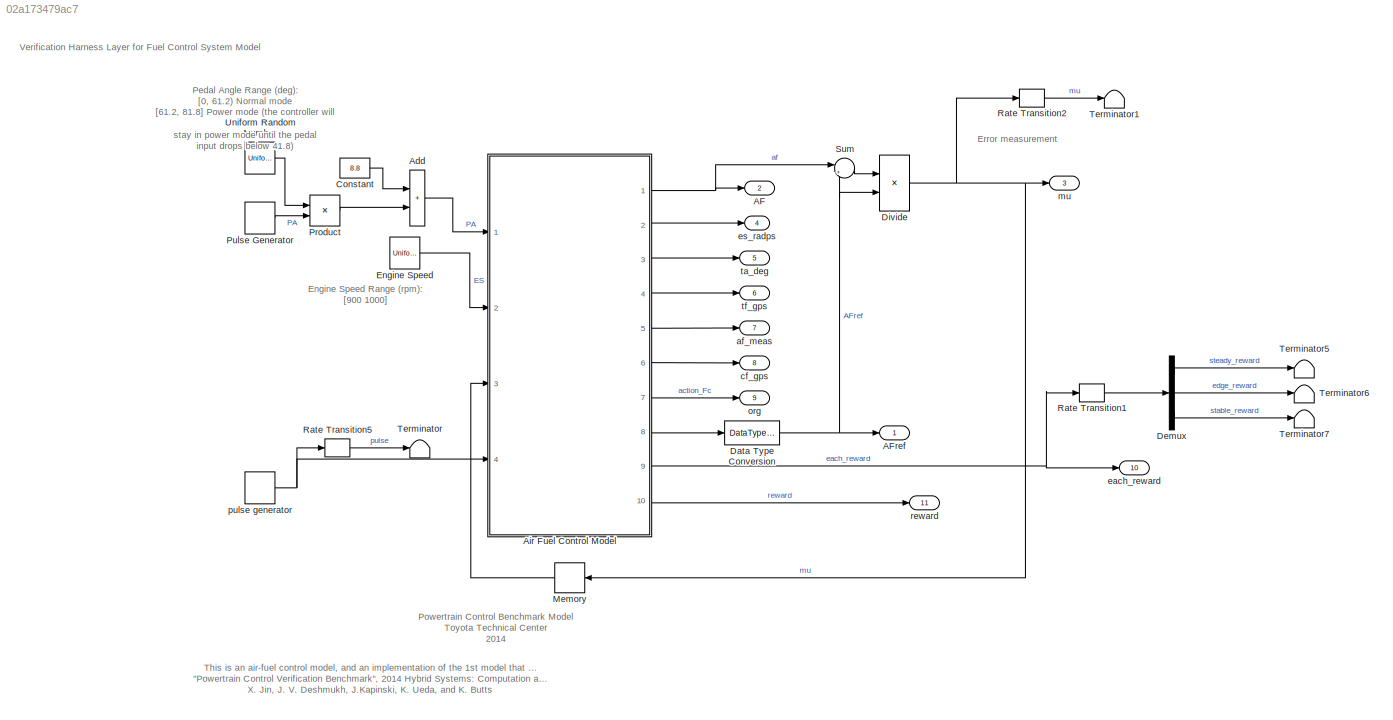
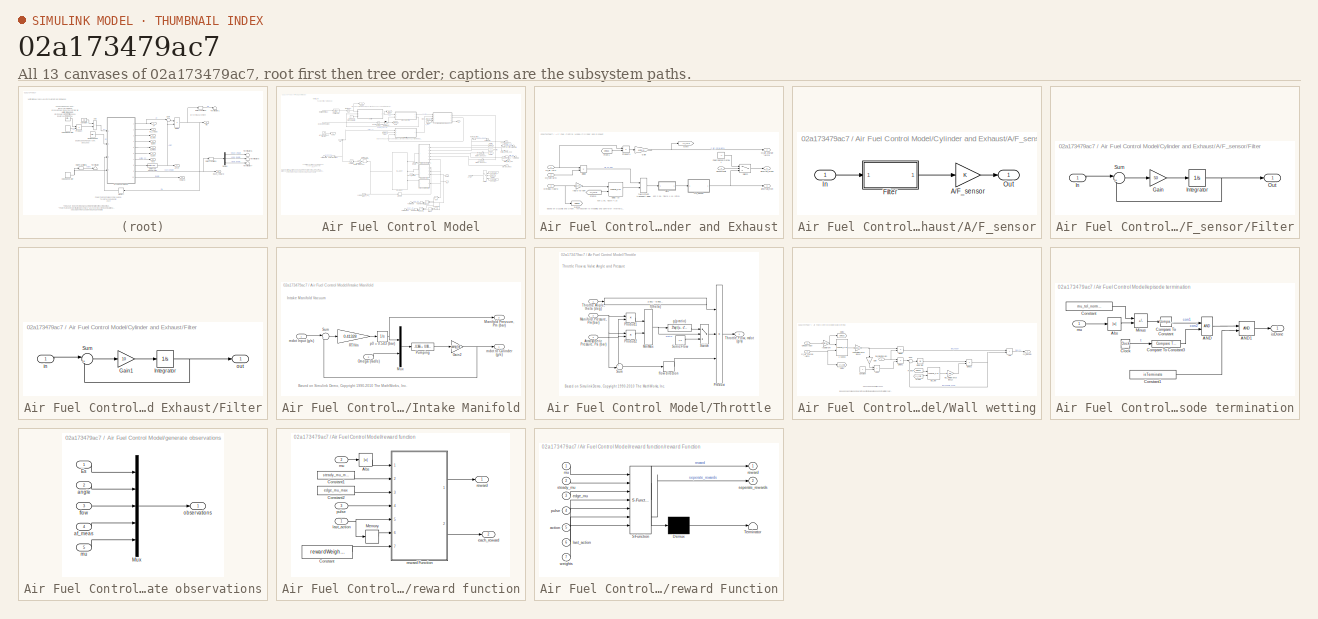
[diagram: thumbnail index - all 13 canvases of the model, root first then tree order]
MODEL slx_02a173479ac7
KIND model
CONFIG AbsTol = auto
CONFIG EnableMultiTasking = off
CONFIG FixedStep = auto
CONFIG MaxStep = .01
CONFIG MinStep = auto
CONFIG RelTol = 1e-3
CONFIG SampleTimeConstraint = Unconstrained
CONFIG SolverName = ode15s
CONFIG StartFcn = if isEval\n  seed_PA = simCount;\n  seed_ES = simCount;\n  simCount = simCount + 1;\nelse\n  seed_PA = randi(20000);\n  seed_ES = randi(20000);\nend
CONFIG StartTime = 0.0
CONFIG StopTime = T
BLOCK [Outport] AF
  Port = 2
  VectorParamsAs1DForOutWhenUnconnected = off
BLOCK [Outport] AFref
  VectorParamsAs1DForOutWhenUnconnected = off
BLOCK [Sum] Add
  IconShape = rectangular
  Ports = [2, 1]
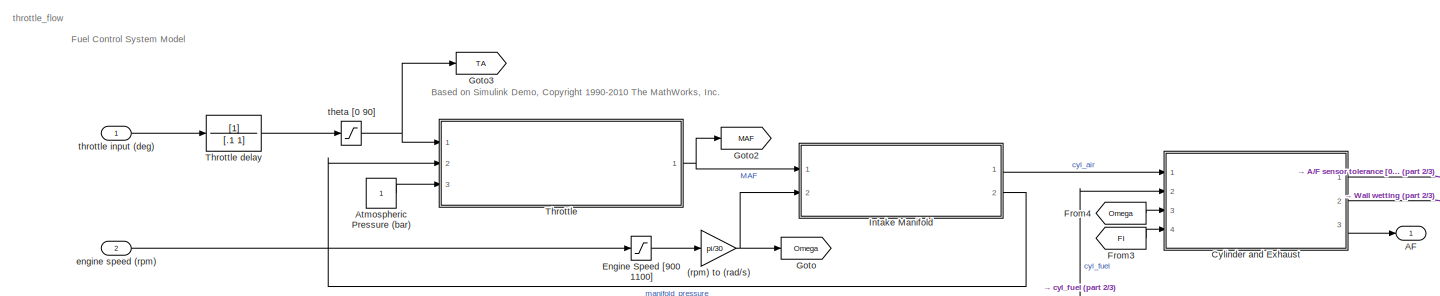
[diagram: Air Fuel Control Model - part 1/3, top center region]
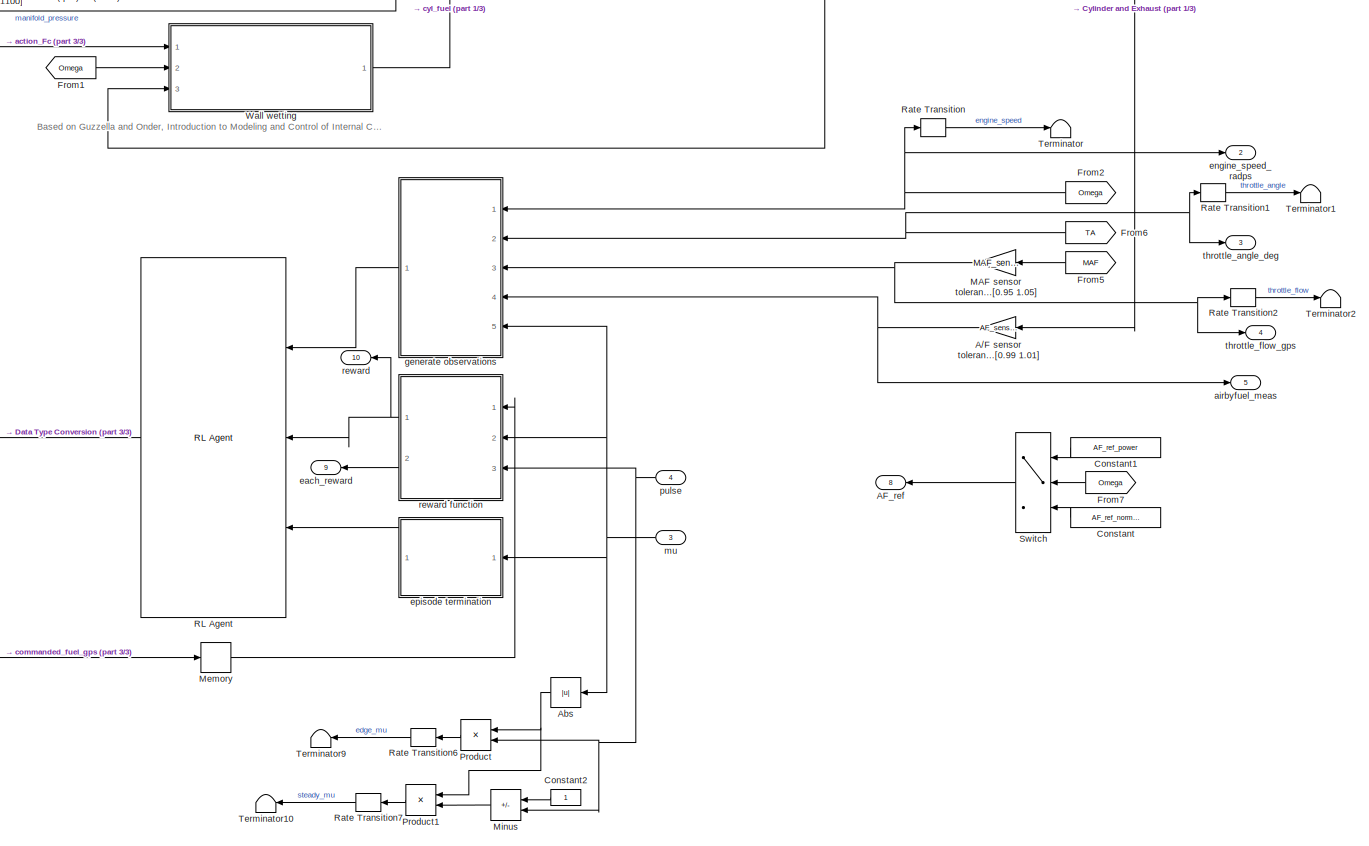
[diagram: Air Fuel Control Model - part 2/3, right side, full height]
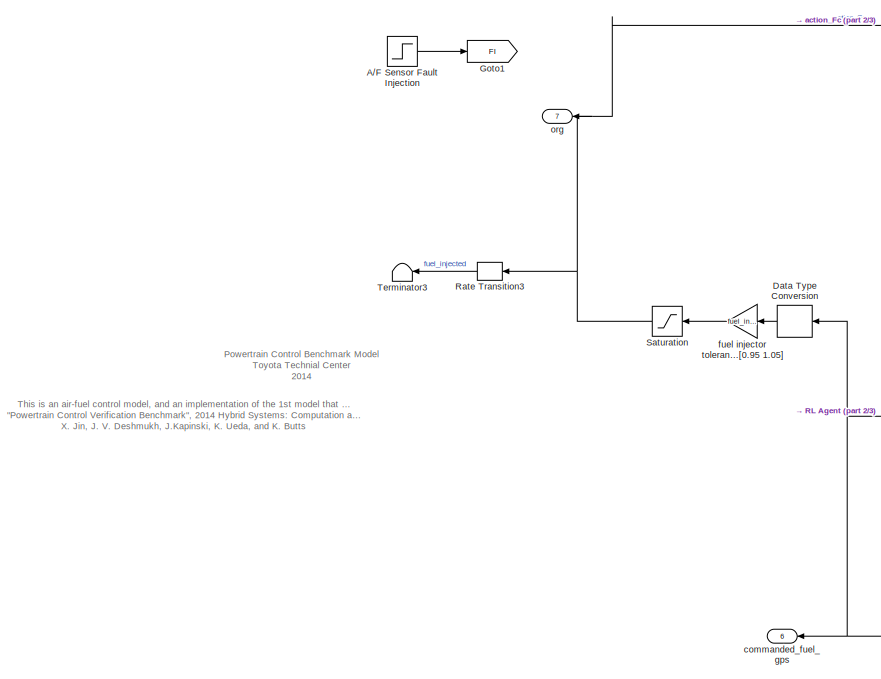
[diagram: Air Fuel Control Model - part 3/3, middle left region]
BLOCK [SubSystem] Air Fuel Control Model
  Ports = [4, 10]
  Priority = 1
  RequestExecContextInheritance = off
  TreatAsAtomicUnit = on
BLOCK [Gain] Air Fuel Control Model/(rpm) to (rad//s)
  Gain = pi/30
BLOCK [Step] Air Fuel Control Model/A//F Sensor Fault Injection
  AttributesFormatString = 1: Failure\n0: Normal
  SampleTime = 0
  Time = fault_time
BLOCK [Gain] Air Fuel Control Model/A//F sensor tolerance [0.99 1.01]
  Gain = AF_sensor_tol
BLOCK [Outport] Air Fuel Control Model/AF
  VectorParamsAs1DForOutWhenUnconnected = off
BLOCK [Outport] Air Fuel Control Model/AF_ref
  Port = 8
BLOCK [Abs] Air Fuel Control Model/Abs
  SaturateOnIntegerOverflow = off
BLOCK [Constant] Air Fuel Control Model/Atmospheric Pressure (bar)
BLOCK [Constant] Air Fuel Control Model/Constant
  Value = AF_ref_normal
BLOCK [Constant] Air Fuel Control Model/Constant1
  Value = AF_ref_power
BLOCK [Constant] Air Fuel Control Model/Constant2
BLOCK [SubSystem] Air Fuel Control Model/Cylinder and Exhaust
  Ports = [4, 3]
  RequestExecContextInheritance = off
BLOCK [SubSystem] Air Fuel Control Model/Cylinder and Exhaust/A//F_sensor
  Ports = [1, 1]
  RequestExecContextInheritance = off
BLOCK [Gain] Air Fuel Control Model/Cylinder and Exhaust/A//F_sensor/A//F_sensor
  OutDataTypeStr = double
BLOCK [SubSystem] Air Fuel Control Model/Cylinder and Exhaust/A//F_sensor/Filter
  Ports = [1, 1]
  RequestExecContextInheritance = off
BLOCK [Gain] Air Fuel Control Model/Cylinder and Exhaust/A//F_sensor/Filter/Gain
  Gain = 50
BLOCK [Inport] Air Fuel Control Model/Cylinder and Exhaust/A//F_sensor/Filter/In
BLOCK [Integrator] Air Fuel Control Model/Cylinder and Exhaust/A//F_sensor/Filter/Integrator
  InitialCondition = 14.7
  Ports = [1, 1]
BLOCK [Outport] Air Fuel Control Model/Cylinder and Exhaust/A//F_sensor/Filter/Out
  VectorParamsAs1DForOutWhenUnconnected = off
BLOCK [Sum] Air Fuel Control Model/Cylinder and Exhaust/A//F_sensor/Filter/Sum
  Inputs = |+-
  Ports = [2, 1]
BLOCK [Inport] Air Fuel Control Model/Cylinder and Exhaust/A//F_sensor/In
BLOCK [Outport] Air Fuel Control Model/Cylinder and Exhaust/A//F_sensor/Out
  VectorParamsAs1DForOutWhenUnconnected = off
BLOCK [Product] Air Fuel Control Model/Cylinder and Exhaust/Divide
  Inputs = */
  Ports = [2, 1]
BLOCK [Constant] Air Fuel Control Model/Cylinder and Exhaust/FaultySensorOutput
  Value = -1
BLOCK [SubSystem] Air Fuel Control Model/Cylinder and Exhaust/Filter
  Ports = [1, 1]
  RequestExecContextInheritance = off
BLOCK [Gain] Air Fuel Control Model/Cylinder and Exhaust/Filter/Gain1
  Gain = 10
BLOCK [Integrator] Air Fuel Control Model/Cylinder and Exhaust/Filter/Integrator
  InitialCondition = 14.7
  Ports = [1, 1]
BLOCK [Sum] Air Fuel Control Model/Cylinder and Exhaust/Filter/Sum
  Inputs = |+-
  Ports = [2, 1]
BLOCK [Inport] Air Fuel Control Model/Cylinder and Exhaust/Filter/in
BLOCK [Outport] Air Fuel Control Model/Cylinder and Exhaust/Filter/out
  VectorParamsAs1DForOutWhenUnconnected = off
BLOCK [From] Air Fuel Control Model/Cylinder and Exhaust/From1
  GotoTag = Omega
BLOCK [From] Air Fuel Control Model/Cylinder and Exhaust/From3
  GotoTag = cyl_chrg
BLOCK [Gain] Air Fuel Control Model/Cylinder and Exhaust/Gain
  Gain = 4*pi/4
BLOCK [Goto] Air Fuel Control Model/Cylinder and Exhaust/Goto
  GotoTag = cyl_chrg
BLOCK [Goto] Air Fuel Control Model/Cylinder and Exhaust/Goto1
  GotoTag = Omega
BLOCK [Inport] Air Fuel Control Model/Cylinder and Exhaust/Omega (rad//s)
  Port = 3
BLOCK [Product] Air Fuel Control Model/Cylinder and Exhaust/Product1
  Inputs = */
  Ports = [2, 1]
  RndMeth = Zero
BLOCK [Inport] Air Fuel Control Model/Cylinder and Exhaust/SensorFault
  Port = 4
BLOCK [Switch] Air Fuel Control Model/Cylinder and Exhaust/Switch
  InputSameDT = off
  SaturateOnIntegerOverflow = off
  Threshold = 0.5
BLOCK [Outport] Air Fuel Control Model/Cylinder and Exhaust/airbyfue_meas
  VectorParamsAs1DForOutWhenUnconnected = off
BLOCK [Outport] Air Fuel Control Model/Cylinder and Exhaust/airbyfuel_mon 
  Port = 3
  VectorParamsAs1DForOutWhenUnconnected = off
BLOCK [Inport] Air Fuel Control Model/Cylinder and Exhaust/cyl_air (g//s)
BLOCK [Outport] Air Fuel Control Model/Cylinder and Exhaust/cyl_air_charge (g//cyl)
  Port = 2
  VectorParamsAs1DForOutWhenUnconnected = off
BLOCK [Inport] Air Fuel Control Model/Cylinder and Exhaust/cyl_fuel (g//s)
  Port = 2
BLOCK [Lookup_n-D] Air Fuel Control Model/Cylinder and Exhaust/delay (s)
  BreakpointsForDimension1 = [800,1000,1500,2000,3000]
  BreakpointsForDimension2 = [0.05,0.15,0.2,0.25]
  InputPortMap = u0,u1
  Ports = [2, 1]
  RndMeth = Simplest
  Table = reshape([0.8,0.6,0.4,0.3,0.2,0.4,0.3,0.2,0.2,0.2,0.3,0.25,0.2,0.2,0.2,0.25,0.2,0.2,0.2,0.2],5,4)
  UseLastTableValue = on
BLOCK [VariableTransportDelay] Air Fuel Control Model/Cylinder and Exhaust/fuel system transport delay
  InitialOutput = 14.7
  MaximumDelay = 10
  MaximumPoints = 20480
  Ports = [2, 1]
  VariableDelayType = Variable transport delay
BLOCK [Gain] Air Fuel Control Model/Cylinder and Exhaust/rad//s to rpm
  Gain = 60/(2*pi)
BLOCK [DataTypeConversion] Air Fuel Control Model/Data Type Conversion
  OutDataTypeStr = double
  RndMeth = Floor
  SaturateOnIntegerOverflow = off
BLOCK [Saturate] Air Fuel Control Model/Engine Speed [900 1100]
  LowerLimit = 900
  NameLocation = top
  UpperLimit = 1100
BLOCK [From] Air Fuel Control Model/From1
  GotoTag = Omega
BLOCK [From] Air Fuel Control Model/From2
  GotoTag = Omega
  NameLocation = top
BLOCK [From] Air Fuel Control Model/From3
  GotoTag = FI
BLOCK [From] Air Fuel Control Model/From4
  GotoTag = Omega
BLOCK [From] Air Fuel Control Model/From5
  GotoTag = MAF
  NameLocation = top
BLOCK [From] Air Fuel Control Model/From6
  GotoTag = TA
  NameLocation = top
BLOCK [From] Air Fuel Control Model/From7
  GotoTag = Omega
  NameLocation = top
BLOCK [Goto] Air Fuel Control Model/Goto
  GotoTag = Omega
BLOCK [Goto] Air Fuel Control Model/Goto1
  GotoTag = FI
BLOCK [Goto] Air Fuel Control Model/Goto2
  GotoTag = MAF
BLOCK [Goto] Air Fuel Control Model/Goto3
  GotoTag = TA
BLOCK [SubSystem] Air Fuel Control Model/Intake Manifold
  Ports = [2, 2]
  RequestExecContextInheritance = off
BLOCK [Gain] Air Fuel Control Model/Intake Manifold/Gain2
  AttributesFormatString = pumping tolerance [0.9 1.1]
  Gain = pump_tol
  OutDataTypeStr = Inherit: Inherit via back propagation
  ParamDataTypeStr = single
  RndMeth = Simplest
  SaturateOnIntegerOverflow = on
  UserDataPersistent = on
BLOCK [Outport] Air Fuel Control Model/Intake Manifold/Manifold Pressure, Pm (bar)
  InitialOutput = 0
  Port = 2
  VectorParamsAs1DForOutWhenUnconnected = off
BLOCK [Mux] Air Fuel Control Model/Intake Manifold/Mux
  DisplayOption = bar
  Inputs = 2
  Ports = [2, 1]
BLOCK [Inport] Air Fuel Control Model/Intake Manifold/Omega (rad//s)
  Port = 2
BLOCK [Fcn] Air Fuel Control Model/Intake Manifold/Pumping
  Expr = -0.366 + 0.08979*u[1]*u[2] - 0.0337*u[2]*u[1]*u[1] + 0.0001*u[1]*u[2]*u[2]
BLOCK [Gain] Air Fuel Control Model/Intake Manifold/RT//Vm
  Gain = 0.41328
  OutDataTypeStr = Inherit: Same as input
  ParamDataTypeStr = Inherit: Same as input
  SaturateOnIntegerOverflow = on
BLOCK [Sum] Air Fuel Control Model/Intake Manifold/Sum
  InputSameDT = on
  Inputs = |+-
  OutDataTypeStr = Inherit: Same as first input
  Ports = [2, 1]
  SaturateOnIntegerOverflow = on
BLOCK [Inport] Air Fuel Control Model/Intake Manifold/mdot Input (g//s)
BLOCK [Outport] Air Fuel Control Model/Intake Manifold/mdot to Cylinder (g//s)
  InitialOutput = 0
  VectorParamsAs1DForOutWhenUnconnected = off
BLOCK [Integrator] Air Fuel Control Model/Intake Manifold/p0 = 0.543 (bar)
  InitialCondition = 0.982
  Ports = [1, 1]
BLOCK [Gain] Air Fuel Control Model/MAF sensor tolerance [0.95 1.05]
  Gain = MAF_sensor_tol
BLOCK [Memory] Air Fuel Control Model/Memory
  InheritSampleTime = on
BLOCK [Sum] Air Fuel Control Model/Minus
  IconShape = rectangular
  Inputs = +-
  Ports = [2, 1]
BLOCK [Product] Air Fuel Control Model/Product
  Ports = [2, 1]
BLOCK [Product] Air Fuel Control Model/Product1
  Ports = [2, 1]
BLOCK [Reference] Air Fuel Control Model/RL Agent  REF=rllib/RL Agent
  Ports = [3, 1]
  SourceBlock = rllib/RL Agent
  SourceProductBaseCode = RL
  SourceType = RL Agent
BLOCK [RateTransition] Air Fuel Control Model/Rate Transition
  OutPortSampleTime = Ts_sample
BLOCK [RateTransition] Air Fuel Control Model/Rate Transition1
  OutPortSampleTime = Ts_sample
BLOCK [RateTransition] Air Fuel Control Model/Rate Transition2
  OutPortSampleTime = Ts_sample
BLOCK [RateTransition] Air Fuel Control Model/Rate Transition3
  OutPortSampleTime = Ts_sample
BLOCK [RateTransition] Air Fuel Control Model/Rate Transition6
  OutPortSampleTime = Ts_sample
BLOCK [RateTransition] Air Fuel Control Model/Rate Transition7
  OutPortSampleTime = Ts_sample
BLOCK [Saturate] Air Fuel Control Model/Saturation
  LowerLimit = fuel_inj_min
  UpperLimit = fuel_inj_max
BLOCK [Switch] Air Fuel Control Model/Switch
  InputSameDT = off
  SaturateOnIntegerOverflow = off
  Threshold = power_threshold
BLOCK [Terminator] Air Fuel Control Model/Terminator
BLOCK [Terminator] Air Fuel Control Model/Terminator1
BLOCK [Terminator] Air Fuel Control Model/Terminator10
BLOCK [Terminator] Air Fuel Control Model/Terminator2
BLOCK [Terminator] Air Fuel Control Model/Terminator3
BLOCK [Terminator] Air Fuel Control Model/Terminator9
BLOCK [SubSystem] Air Fuel Control Model/Throttle
  Ports = [3, 1]
  RequestExecContextInheritance = off
BLOCK [TransferFcn] Air Fuel Control Model/Throttle delay
  Denominator = [.1 1]
BLOCK [Inport] Air Fuel Control Model/Throttle/Atmospheric Pressure, Pa (bar) 
  Port = 3
BLOCK [Inport] Air Fuel Control Model/Throttle/Manifold Pressure, Pm (bar)
  Port = 2
BLOCK [MinMax] Air Fuel Control Model/Throttle/MinMax
  InputSameDT = on
  Inputs = 2
  Ports = [2, 1]
  SaturateOnIntegerOverflow = on
BLOCK [Product] Air Fuel Control Model/Throttle/Product
  InputSameDT = on
  Inputs = 3
  OutDataTypeStr = Inherit: Same as first input
  Ports = [3, 1]
  RndMeth = Zero
  SaturateOnIntegerOverflow = on
BLOCK [Product] Air Fuel Control Model/Throttle/Product1
  InputSameDT = on
  Inputs = */
  OutDataTypeStr = Inherit: Same as first input
  Ports = [2, 1]
  RndMeth = Zero
  SaturateOnIntegerOverflow = on
BLOCK [Product] Air Fuel Control Model/Throttle/Product2
  InputSameDT = on
  Inputs = /*
  OutDataTypeStr = Inherit: Same as first input
  Ports = [2, 1]
  RndMeth = Zero
  SaturateOnIntegerOverflow = on
BLOCK [Constant] Air Fuel Control Model/Throttle/Sonic Flow 
  Value = 1.0
BLOCK [Sum] Air Fuel Control Model/Throttle/Sum
  InputSameDT = on
  Inputs = +-|
  OutDataTypeStr = Inherit: Same as first input
  Ports = [2, 1]
  SaturateOnIntegerOverflow = on
BLOCK [Switch] Air Fuel Control Model/Throttle/Switch
  Threshold = 0.5
BLOCK [Inport] Air Fuel Control Model/Throttle/Throttle Angle, theta (deg)
  NameLocation = top
BLOCK [Outport] Air Fuel Control Model/Throttle/Throttle Flow, mdot (g//s)
  InitialOutput = 0
  VectorParamsAs1DForOutWhenUnconnected = off
BLOCK [Fcn] Air Fuel Control Model/Throttle/f(theta)
  Expr = 2.821 - 0.05231*u + 0.10299*u*u - 0.00063*u*u*u
  NameLocation = top
BLOCK [Signum] Air Fuel Control Model/Throttle/flow direction
BLOCK [Fcn] Air Fuel Control Model/Throttle/g(pratio)
  Expr = 2*sqrt(u - u*u)
  NameLocation = top
BLOCK [SubSystem] Air Fuel Control Model/Wall wetting
  Ports = [3, 1]
  RequestExecContextInheritance = off
BLOCK [Lookup_n-D] Air Fuel Control Model/Wall wetting/1-Kappa
  BreakpointsForDimension1 = [1000,1500,2000,2500,3000]
  BreakpointsForDimension2 = [.1,.2,.3,.4]
  InputPortMap = u0,u1
  Ports = [2, 1]
  RndMeth = Simplest
  Table = reshape([0.8,.7,.7,.8,.9,.7,.66,.65,.73,.85,.66,.66,.63,.66,.8,.6,.6,.6,.6,.7],5,4)
  UseLastTableValue = on
BLOCK [Sum] Air Fuel Control Model/Wall wetting/Add
  IconShape = rectangular
  Ports = [2, 1]
BLOCK [Sum] Air Fuel Control Model/Wall wetting/Add2
  IconShape = rectangular
  Ports = [2, 1]
BLOCK [Constant] Air Fuel Control Model/Wall wetting/Constant
BLOCK [Product] Air Fuel Control Model/Wall wetting/Divide
  Inputs = **
  Ports = [2, 1]
BLOCK [Product] Air Fuel Control Model/Wall wetting/Divide1
  Inputs = **
  Ports = [2, 1]
BLOCK [Product] Air Fuel Control Model/Wall wetting/Divide2
  Inputs = */
  Ports = [2, 1]
BLOCK [From] Air Fuel Control Model/Wall wetting/From2
  GotoTag = cyl_chrg
BLOCK [From] Air Fuel Control Model/Wall wetting/From3
  GotoTag = Omega
BLOCK [Gain] Air Fuel Control Model/Wall wetting/Gain
  Gain = -1
  NameLocation = left
BLOCK [Goto] Air Fuel Control Model/Wall wetting/Goto1
  GotoTag = cyl_chrg
BLOCK [Goto] Air Fuel Control Model/Wall wetting/Goto2
  GotoTag = Omega
BLOCK [Integrator] Air Fuel Control Model/Wall wetting/Integrator
  InitialCondition = .0112
  Ports = [1, 1]
BLOCK [Gain] Air Fuel Control Model/Wall wetting/Kappa tolerance [0.9 1.1]
  Gain = kappa_tol
  NameLocation = top
BLOCK [Inport] Air Fuel Control Model/Wall wetting/Omega (rad//s)
  Port = 2
BLOCK [Sum] Air Fuel Control Model/Wall wetting/Sum
  Inputs = |+-
  Ports = [2, 1]
BLOCK [Inport] Air Fuel Control Model/Wall wetting/cyl_air_charge (g//cyl)
  Port = 3
BLOCK [Outport] Air Fuel Control Model/Wall wetting/cyl_fuel (g//s)
  VectorParamsAs1DForOutWhenUnconnected = off
BLOCK [Inport] Air Fuel Control Model/Wall wetting/fuel_injected (g//s)
BLOCK [Gain] Air Fuel Control Model/Wall wetting/rad//s to rpm
  Gain = 60/(2*pi)
BLOCK [Lookup_n-D] Air Fuel Control Model/Wall wetting/tau_ww
  BreakpointsForDimension1 = [1000,1500,2000,2500,3000]
  BreakpointsForDimension2 = [0.1,0.2,0.3,0.4]
  InputPortMap = u0,u1
  Ports = [2, 1]
  RndMeth = Simplest
  Table = reshape([.4,.3,.35,.3,.2,.22,.22,.4,.35,.5,.20,.22,.5,.4,.35,.35,.3,.45,.5,.4],5,4)
  UseLastTableValue = on
BLOCK [Gain] Air Fuel Control Model/Wall wetting/tau_ww tolerance [0.9 1.1]
  Gain = tau_ww_tol
  NameLocation = top
BLOCK [Outport] Air Fuel Control Model/airbyfuel_meas
  Port = 5
BLOCK [Outport] Air Fuel Control Model/commanded_fuel_gps
  Port = 6
BLOCK [Outport] Air Fuel Control Model/each_reward
  Port = 9
BLOCK [Inport] Air Fuel Control Model/engine speed (rpm)
  AttributesFormatString = %<Description>
  Description = [900,1100]
  Port = 2
BLOCK [Outport] Air Fuel Control Model/engine_speed_radps
  Port = 2
BLOCK [SubSystem] Air Fuel Control Model/episode termination
  Ports = [1, 1]
  RequestExecContextInheritance = off
BLOCK [Logic] Air Fuel Control Model/episode termination/AND
  AllPortsSameDT = off
  IconShape = distinctive
  OutDataTypeStr = boolean
  Ports = [2, 1]
BLOCK [Logic] Air Fuel Control Model/episode termination/AND1
  AllPortsSameDT = off
  IconShape = distinctive
  OutDataTypeStr = boolean
  Ports = [2, 1]
BLOCK [Abs] Air Fuel Control Model/episode termination/Abs
  SaturateOnIntegerOverflow = off
BLOCK [Clock] Air Fuel Control Model/episode termination/Clock
BLOCK [Reference] Air Fuel Control Model/episode termination/Compare To Constant  REF=simulink/Logic and Bit
Operations/Compare
To Constant
  Ports = [1, 1]
  SourceBlock = simulink/Logic and Bit\nOperations/Compare\nTo Constant
  SourceProductBaseCode = SL
  SourceType = Compare To Constant
BLOCK [Reference] Air Fuel Control Model/episode termination/Compare To Constant3  REF=simulink/Logic and Bit
Operations/Compare
To Constant
  Ports = [1, 1]
  SourceBlock = simulink/Logic and Bit\nOperations/Compare\nTo Constant
  SourceProductBaseCode = SL
  SourceType = Compare To Constant
BLOCK [Constant] Air Fuel Control Model/episode termination/Constant
  Value = mu_tol_normal
BLOCK [Constant] Air Fuel Control Model/episode termination/Constant1
  Value = isTerminate
BLOCK [Sum] Air Fuel Control Model/episode termination/Minus
  IconShape = rectangular
  Inputs = -+
  Ports = [2, 1]
BLOCK [Outport] Air Fuel Control Model/episode termination/isDone
BLOCK [Inport] Air Fuel Control Model/episode termination/mu
BLOCK [Gain] Air Fuel Control Model/fuel injector tolerance [0.95 1.05]
  Gain = fuel_inj_tol
  NameLocation = top
BLOCK [SubSystem] Air Fuel Control Model/generate observations
  Ports = [5, 1]
  RequestExecContextInheritance = off
BLOCK [Inport] Air Fuel Control Model/generate observations/Es
BLOCK [Mux] Air Fuel Control Model/generate observations/Mux
  DisplayOption = bar
  Inputs = 5
  Ports = [5, 1]
BLOCK [Inport] Air Fuel Control Model/generate observations/af_meas
  Port = 4
BLOCK [Inport] Air Fuel Control Model/generate observations/angle
  Port = 2
BLOCK [Inport] Air Fuel Control Model/generate observations/flow
  Port = 3
BLOCK [Inport] Air Fuel Control Model/generate observations/mu
  Port = 5
BLOCK [Outport] Air Fuel Control Model/generate observations/observations
BLOCK [Inport] Air Fuel Control Model/mu
  Port = 3
BLOCK [Outport] Air Fuel Control Model/org
  Port = 7
BLOCK [Inport] Air Fuel Control Model/pulse
  Port = 4
BLOCK [Outport] Air Fuel Control Model/reward
  Port = 10
BLOCK [SubSystem] Air Fuel Control Model/reward function
  Ports = [3, 2]
  RequestExecContextInheritance = off
BLOCK [Abs] Air Fuel Control Model/reward function/Abs
  SaturateOnIntegerOverflow = off
BLOCK [Constant] Air Fuel Control Model/reward function/Constant
  Value = rewardWeights
BLOCK [Constant] Air Fuel Control Model/reward function/Constant1
  Value = steady_mu_max
BLOCK [Constant] Air Fuel Control Model/reward function/Constant2
  Value = edge_mu_max
BLOCK [Memory] Air Fuel Control Model/reward function/Memory
  InheritSampleTime = on
BLOCK [Outport] Air Fuel Control Model/reward function/each_reward
  Port = 2
BLOCK [Inport] Air Fuel Control Model/reward function/last_action
BLOCK [Inport] Air Fuel Control Model/reward function/mu
  Port = 2
BLOCK [Inport] Air Fuel Control Model/reward function/pulse
  Port = 3
BLOCK [Outport] Air Fuel Control Model/reward function/reward
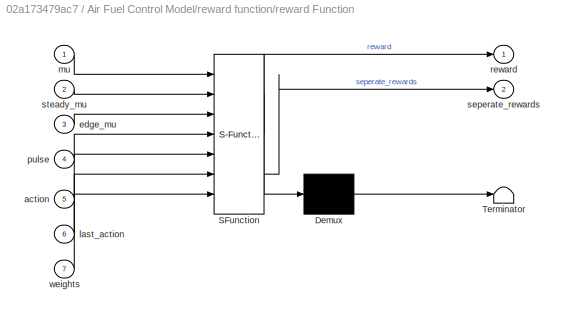
BLOCK [SubSystem] Air Fuel Control Model/reward function/reward Function
  ErrorFcn = Stateflow.Translate.translate
  PermitHierarchicalResolution = ExplicitOnly
  Ports = [7, 2]
  RequestExecContextInheritance = off
  SFBlockType = MATLAB Function
  TreatAsAtomicUnit = on
BLOCK [Demux] Air Fuel Control Model/reward function/reward Function/ Demux 
  Outputs = 1
  Ports = [1, 1]
BLOCK [S-Function] Air Fuel Control Model/reward function/reward Function/ SFunction 
  EnableBusSupport = on
  FunctionName = sf_sfun
  PortCounts = [7 3]
  Ports = [7, 3]
  SFcnIsStateOwnerBlock = off
  SFunctionDeploymentMode = off
  Tag = Stateflow S-Function 2
BLOCK [Terminator] Air Fuel Control Model/reward function/reward Function/ Terminator 
BLOCK [Inport] Air Fuel Control Model/reward function/reward Function/action
  Port = 5
BLOCK [Inport] Air Fuel Control Model/reward function/reward Function/edge_mu
  Port = 3
BLOCK [Inport] Air Fuel Control Model/reward function/reward Function/last_action
  Port = 6
BLOCK [Inport] Air Fuel Control Model/reward function/reward Function/mu
BLOCK [Inport] Air Fuel Control Model/reward function/reward Function/pulse
  Port = 4
BLOCK [Outport] Air Fuel Control Model/reward function/reward Function/reward
BLOCK [Outport] Air Fuel Control Model/reward function/reward Function/seperate_rewards
  Port = 2
BLOCK [Inport] Air Fuel Control Model/reward function/reward Function/steady_mu
  Port = 2
BLOCK [Inport] Air Fuel Control Model/reward function/reward Function/weights
  Port = 7
BLOCK [Saturate] Air Fuel Control Model/theta [0 90]
  LowerLimit = 0
  NameLocation = top
  UpperLimit = 90
BLOCK [Inport] Air Fuel Control Model/throttle input (deg)
  AttributesFormatString = %<Description>
  Description = [0, 81.2]
BLOCK [Outport] Air Fuel Control Model/throttle_angle_deg
  Port = 3
BLOCK [Outport] Air Fuel Control Model/throttle_flow_gps
  Port = 4
BLOCK [Constant] Constant
  Value = 8.8
BLOCK [DataTypeConversion] Data Type Conversion
  OutDataTypeStr = double
  RndMeth = Floor
  SaturateOnIntegerOverflow = off
BLOCK [Demux] Demux
  Outputs = 3
  Ports = [1, 3]
BLOCK [Product] Divide
  Inputs = */
  Ports = [2, 1]
BLOCK [UniformRandomNumber] Engine Speed
  Maximum = max_Engine_Speed
  Minimum = min_Engine_Speed
  SampleTime = change_freq_ES
  Seed = seed_ES
  VectorParams1D = off
BLOCK [Memory] Memory
BLOCK [Product] Product
  Ports = [2, 1]
BLOCK [DiscretePulseGenerator] Pulse Generator
  Period = change_freq_PA
  Ports = [0, 1]
  PulseType = Time based
  PulseWidth = 50
BLOCK [RateTransition] Rate Transition1
  OutPortSampleTime = Ts_sample
BLOCK [RateTransition] Rate Transition2
  OutPortSampleTime = Ts_sample
BLOCK [RateTransition] Rate Transition5
  OutPortSampleTime = Ts_sample
BLOCK [Sum] Sum
  Inputs = |+-
  Ports = [2, 1]
BLOCK [Terminator] Terminator
BLOCK [Terminator] Terminator1
BLOCK [Terminator] Terminator5
BLOCK [Terminator] Terminator6
BLOCK [Terminator] Terminator7
BLOCK [UniformRandomNumber] Uniform Random Number
  Maximum = max_Pedal_Angle
  Minimum = min_Pedal_Angle
  SampleTime = change_freq_PA
  Seed = seed_PA
BLOCK [Outport] af_meas
  Port = 7
BLOCK [Outport] cf_gps
  Port = 8
BLOCK [Outport] each_reward
  Port = 10
BLOCK [Outport] es_radps
  Port = 4
BLOCK [Outport] mu
  Port = 3
  VectorParamsAs1DForOutWhenUnconnected = off
BLOCK [Outport] org
  Port = 9
BLOCK [DiscretePulseGenerator] pulse generator
  Period = change_freq_ES
  PhaseDelay = 0.3
  Ports = [0, 1]
  PulseType = Time based
  PulseWidth = 50
BLOCK [Outport] reward
  Port = 11
BLOCK [Outport] ta_deg
  Port = 5
BLOCK [Outport] tf_gps
  Port = 6
ANNOTATION (root): Error measurement
ANNOTATION (root): Engine Speed Range (rpm): [900 1000]
ANNOTATION (root): Pedal Angle Range (deg): [0, 61.2) Normal mode [61.2, 81.8] Power mode (the controller will stay in power mode until the pedal input drops below 41.8)
ANNOTATION (root): Powertrain Control Benchmark Model Toyota Technical Center 2014
ANNOTATION (root): This is an air-fuel control model, and an implementation of the 1st model that appears in "Powertrain Control Verification Benchmark", 2014 Hybrid Systems: Computation and Control, X. Jin, J. V. Deshmukh, J.Kapinski, K. Ueda, and K. Butts
ANNOTATION (root): Verification Harness Layer for Fuel Control System Model
ANNOTATION Air Fuel Control Model: Based on Guzzella and Onder, Introduction to Modeling and Control of Internal Combustion Engine Systems
ANNOTATION Air Fuel Control Model: Based on Simulink Demo, <copyright redacted>
ANNOTATION Air Fuel Control Model: Fuel Control System Model
ANNOTATION Air Fuel Control Model: Powertrain Control Benchmark Model Toyota Technial Center 2014
ANNOTATION Air Fuel Control Model: This is an air-fuel control model, and an implementation of the 1st model that appears in "Powertrain Control Verification Benchmark", 2014 Hybrid Systems: Computation and Control, X. Jin, J. V. Deshmukh, J.Kapinski, K. Ueda, and K. Butts
ANNOTATION Air Fuel Control Model: throttle_flow
ANNOTATION Air Fuel Control Model/Cylinder and Exhaust: Based on Guzzella and Onder, Introduction to Modeling and Control of Internal Combustion Engine Systems
ANNOTATION Air Fuel Control Model/Cylinder and Exhaust: eqn 2.96, figure 4.16
ANNOTATION Air Fuel Control Model/Cylinder and Exhaust: eqn 2.96, figure 4.16 (simp)
ANNOTATION Air Fuel Control Model/Intake Manifold: Based on Simulink Demo, <copyright redacted>
ANNOTATION Air Fuel Control Model/Intake Manifold: Intake Manifold Vacuum
ANNOTATION Air Fuel Control Model/Throttle: Based on Simulink Demo, <copyright redacted>
ANNOTATION Air Fuel Control Model/Throttle: Throttle Flow vs. Valve Angle and Pressure
ANNOTATION Air Fuel Control Model/Wall wetting: Based on Guzzella and Onder, Introduction to Modeling and Control of Internal Combustion Engine Systems
ANNOTATION Air Fuel Control Model/Wall wetting: eqns 2.65 and 2.66, figure 2.21
LINE Add:1 -> Air Fuel Control Model:1
NET Air Fuel Control Model/(rpm) to (rad//s):1 -> Air Fuel Control Model/Goto:1, Air Fuel Control Model/Intake Manifold:2
LINE Air Fuel Control Model/A//F Sensor Fault Injection:1 -> Air Fuel Control Model/Goto1:1
NET Air Fuel Control Model/A//F sensor tolerance [0.99 1.01]:1 -> Air Fuel Control Model/airbyfuel_meas:1, Air Fuel Control Model/generate observations:4
NET Air Fuel Control Model/Abs:1 -> Air Fuel Control Model/Product1:1, Air Fuel Control Model/Product:1
LINE Air Fuel Control Model/Atmospheric Pressure (bar):1 -> Air Fuel Control Model/Throttle:3
LINE Air Fuel Control Model/Constant1:1 -> Air Fuel Control Model/Switch:1
LINE Air Fuel Control Model/Constant2:1 -> Air Fuel Control Model/Minus:1
LINE Air Fuel Control Model/Constant:1 -> Air Fuel Control Model/Switch:3
LINE Air Fuel Control Model/Cylinder and Exhaust/A//F_sensor/A//F_sensor:1 -> Air Fuel Control Model/Cylinder and Exhaust/A//F_sensor/Out:1
LINE Air Fuel Control Model/Cylinder and Exhaust/A//F_sensor/Filter/Gain:1 -> Air Fuel Control Model/Cylinder and Exhaust/A//F_sensor/Filter/Integrator:1
LINE Air Fuel Control Model/Cylinder and Exhaust/A//F_sensor/Filter/In:1 -> Air Fuel Control Model/Cylinder and Exhaust/A//F_sensor/Filter/Sum:1
NET Air Fuel Control Model/Cylinder and Exhaust/A//F_sensor/Filter/Integrator:1 -> Air Fuel Control Model/Cylinder and Exhaust/A//F_sensor/Filter/Out:1, Air Fuel Control Model/Cylinder and Exhaust/A//F_sensor/Filter/Sum:2
LINE Air Fuel Control Model/Cylinder and Exhaust/A//F_sensor/Filter/Sum:1 -> Air Fuel Control Model/Cylinder and Exhaust/A//F_sensor/Filter/Gain:1
LINE Air Fuel Control Model/Cylinder and Exhaust/A//F_sensor/Filter:1 -> Air Fuel Control Model/Cylinder and Exhaust/A//F_sensor/A//F_sensor:1
LINE Air Fuel Control Model/Cylinder and Exhaust/A//F_sensor/In:1 -> Air Fuel Control Model/Cylinder and Exhaust/A//F_sensor/Filter:1
NET Air Fuel Control Model/Cylinder and Exhaust/A//F_sensor:1 -> Air Fuel Control Model/Cylinder and Exhaust/Switch:3, Air Fuel Control Model/Cylinder and Exhaust/airbyfuel_mon :1
LINE Air Fuel Control Model/Cylinder and Exhaust/Divide:1 -> Air Fuel Control Model/Cylinder and Exhaust/fuel system transport delay:1
LINE Air Fuel Control Model/Cylinder and Exhaust/FaultySensorOutput:1 -> Air Fuel Control Model/Cylinder and Exhaust/Switch:1
LINE Air Fuel Control Model/Cylinder and Exhaust/Filter/Gain1:1 -> Air Fuel Control Model/Cylinder and Exhaust/Filter/Integrator:1
NET Air Fuel Control Model/Cylinder and Exhaust/Filter/Integrator:1 -> Air Fuel Control Model/Cylinder and Exhaust/Filter/Sum:2, Air Fuel Control Model/Cylinder and Exhaust/Filter/out:1
LINE Air Fuel Control Model/Cylinder and Exhaust/Filter/Sum:1 -> Air Fuel Control Model/Cylinder and Exhaust/Filter/Gain1:1
LINE Air Fuel Control Model/Cylinder and Exhaust/Filter/in:1 -> Air Fuel Control Model/Cylinder and Exhaust/Filter/Sum:1
LINE Air Fuel Control Model/Cylinder and Exhaust/Filter:1 -> Air Fuel Control Model/Cylinder and Exhaust/A//F_sensor:1
LINE Air Fuel Control Model/Cylinder and Exhaust/From1:1 -> Air Fuel Control Model/Cylinder and Exhaust/Product1:2
LINE Air Fuel Control Model/Cylinder and Exhaust/From3:1 -> Air Fuel Control Model/Cylinder and Exhaust/delay (s):2
NET Air Fuel Control Model/Cylinder and Exhaust/Gain:1 -> Air Fuel Control Model/Cylinder and Exhaust/Goto:1, Air Fuel Control Model/Cylinder and Exhaust/cyl_air_charge (g//cyl):1
NET Air Fuel Control Model/Cylinder and Exhaust/Omega (rad//s):1 -> Air Fuel Control Model/Cylinder and Exhaust/Goto1:1, Air Fuel Control Model/Cylinder and Exhaust/rad//s to rpm:1
LINE Air Fuel Control Model/Cylinder and Exhaust/Product1:1 -> Air Fuel Control Model/Cylinder and Exhaust/Gain:1
LINE Air Fuel Control Model/Cylinder and Exhaust/SensorFault:1 -> Air Fuel Control Model/Cylinder and Exhaust/Switch:2
LINE Air Fuel Control Model/Cylinder and Exhaust/Switch:1 -> Air Fuel Control Model/Cylinder and Exhaust/airbyfue_meas:1
NET Air Fuel Control Model/Cylinder and Exhaust/cyl_air (g//s):1 -> Air Fuel Control Model/Cylinder and Exhaust/Divide:1, Air Fuel Control Model/Cylinder and Exhaust/Product1:1
LINE Air Fuel Control Model/Cylinder and Exhaust/cyl_fuel (g//s):1 -> Air Fuel Control Model/Cylinder and Exhaust/Divide:2
LINE Air Fuel Control Model/Cylinder and Exhaust/delay (s):1 -> Air Fuel Control Model/Cylinder and Exhaust/fuel system transport delay:2
LINE Air Fuel Control Model/Cylinder and Exhaust/fuel system transport delay:1 -> Air Fuel Control Model/Cylinder and Exhaust/Filter:1
LINE Air Fuel Control Model/Cylinder and Exhaust/rad//s to rpm:1 -> Air Fuel Control Model/Cylinder and Exhaust/delay (s):1
LINE Air Fuel Control Model/Cylinder and Exhaust:1 -> Air Fuel Control Model/A//F sensor tolerance [0.99 1.01]:1
LINE Air Fuel Control Model/Cylinder and Exhaust:2 -> Air Fuel Control Model/Wall wetting:3
LINE Air Fuel Control Model/Cylinder and Exhaust:3 -> Air Fuel Control Model/AF:1
LINE Air Fuel Control Model/Data Type Conversion:1 -> Air Fuel Control Model/fuel injector tolerance [0.95 1.05]:1
LINE Air Fuel Control Model/Engine Speed [900 1100]:1 -> Air Fuel Control Model/(rpm) to (rad//s):1
LINE Air Fuel Control Model/From1:1 -> Air Fuel Control Model/Wall wetting:2
NET Air Fuel Control Model/From2:1 -> Air Fuel Control Model/Rate Transition:1, Air Fuel Control Model/engine_speed_radps:1, Air Fuel Control Model/generate observations:1
LINE Air Fuel Control Model/From3:1 -> Air Fuel Control Model/Cylinder and Exhaust:4
LINE Air Fuel Control Model/From4:1 -> Air Fuel Control Model/Cylinder and Exhaust:3
LINE Air Fuel Control Model/From5:1 -> Air Fuel Control Model/MAF sensor tolerance [0.95 1.05]:1
NET Air Fuel Control Model/From6:1 -> Air Fuel Control Model/Rate Transition1:1, Air Fuel Control Model/generate observations:2, Air Fuel Control Model/throttle_angle_deg:1
LINE Air Fuel Control Model/From7:1 -> Air Fuel Control Model/Switch:2
NET Air Fuel Control Model/Intake Manifold/Gain2:1 -> Air Fuel Control Model/Intake Manifold/Sum:2, Air Fuel Control Model/Intake Manifold/mdot to Cylinder (g//s):1
LINE Air Fuel Control Model/Intake Manifold/Mux:1 -> Air Fuel Control Model/Intake Manifold/Pumping:1
LINE Air Fuel Control Model/Intake Manifold/Omega (rad//s):1 -> Air Fuel Control Model/Intake Manifold/Mux:2
LINE Air Fuel Control Model/Intake Manifold/Pumping:1 -> Air Fuel Control Model/Intake Manifold/Gain2:1
LINE Air Fuel Control Model/Intake Manifold/RT//Vm:1 -> Air Fuel Control Model/Intake Manifold/p0 = 0.543 (bar):1
LINE Air Fuel Control Model/Intake Manifold/Sum:1 -> Air Fuel Control Model/Intake Manifold/RT//Vm:1
LINE Air Fuel Control Model/Intake Manifold/mdot Input (g//s):1 -> Air Fuel Control Model/Intake Manifold/Sum:1
NET Air Fuel Control Model/Intake Manifold/p0 = 0.543 (bar):1 -> Air Fuel Control Model/Intake Manifold/Manifold Pressure, Pm (bar):1, Air Fuel Control Model/Intake Manifold/Mux:1
LINE Air Fuel Control Model/Intake Manifold:1 -> Air Fuel Control Model/Cylinder and Exhaust:1
LINE Air Fuel Control Model/Intake Manifold:2 -> Air Fuel Control Model/Throttle:2
NET Air Fuel Control Model/MAF sensor tolerance [0.95 1.05]:1 -> Air Fuel Control Model/Rate Transition2:1, Air Fuel Control Model/generate observations:3, Air Fuel Control Model/throttle_flow_gps:1
LINE Air Fuel Control Model/Memory:1 -> Air Fuel Control Model/reward function:1
LINE Air Fuel Control Model/Minus:1 -> Air Fuel Control Model/Product1:2
LINE Air Fuel Control Model/Product1:1 -> Air Fuel Control Model/Rate Transition7:1
LINE Air Fuel Control Model/Product:1 -> Air Fuel Control Model/Rate Transition6:1
NET Air Fuel Control Model/RL Agent:1 -> Air Fuel Control Model/Data Type Conversion:1, Air Fuel Control Model/Memory:1, Air Fuel Control Model/commanded_fuel_gps:1
LINE Air Fuel Control Model/Rate Transition1:1 -> Air Fuel Control Model/Terminator1:1
LINE Air Fuel Control Model/Rate Transition2:1 -> Air Fuel Control Model/Terminator2:1
LINE Air Fuel Control Model/Rate Transition3:1 -> Air Fuel Control Model/Terminator3:1
LINE Air Fuel Control Model/Rate Transition6:1 -> Air Fuel Control Model/Terminator9:1
LINE Air Fuel Control Model/Rate Transition7:1 -> Air Fuel Control Model/Terminator10:1
LINE Air Fuel Control Model/Rate Transition:1 -> Air Fuel Control Model/Terminator:1
NET Air Fuel Control Model/Saturation:1 -> Air Fuel Control Model/Rate Transition3:1, Air Fuel Control Model/Wall wetting:1, Air Fuel Control Model/org:1
LINE Air Fuel Control Model/Switch:1 -> Air Fuel Control Model/AF_ref:1
LINE Air Fuel Control Model/Throttle delay:1 -> Air Fuel Control Model/theta [0 90]:1
NET Air Fuel Control Model/Throttle/Atmospheric Pressure, Pa (bar) :1 -> Air Fuel Control Model/Throttle/Product1:2, Air Fuel Control Model/Throttle/Product2:2, Air Fuel Control Model/Throttle/Sum:1
NET Air Fuel Control Model/Throttle/Manifold Pressure, Pm (bar):1 -> Air Fuel Control Model/Throttle/Product1:1, Air Fuel Control Model/Throttle/Product2:1, Air Fuel Control Model/Throttle/Sum:2
NET Air Fuel Control Model/Throttle/MinMax:1 -> Air Fuel Control Model/Throttle/Switch:2, Air Fuel Control Model/Throttle/g(pratio):1
LINE Air Fuel Control Model/Throttle/Product1:1 -> Air Fuel Control Model/Throttle/MinMax:1
LINE Air Fuel Control Model/Throttle/Product2:1 -> Air Fuel Control Model/Throttle/MinMax:2
LINE Air Fuel Control Model/Throttle/Product:1 -> Air Fuel Control Model/Throttle/Throttle Flow, mdot (g//s):1
LINE Air Fuel Control Model/Throttle/Sonic Flow :1 -> Air Fuel Control Model/Throttle/Switch:3
LINE Air Fuel Control Model/Throttle/Sum:1 -> Air Fuel Control Model/Throttle/flow direction:1
LINE Air Fuel Control Model/Throttle/Switch:1 -> Air Fuel Control Model/Throttle/Product:2
LINE Air Fuel Control Model/Throttle/Throttle Angle, theta (deg):1 -> Air Fuel Control Model/Throttle/f(theta):1
LINE Air Fuel Control Model/Throttle/f(theta):1 -> Air Fuel Control Model/Throttle/Product:1
LINE Air Fuel Control Model/Throttle/flow direction:1 -> Air Fuel Control Model/Throttle/Product:3
LINE Air Fuel Control Model/Throttle/g(pratio):1 -> Air Fuel Control Model/Throttle/Switch:1
NET Air Fuel Control Model/Throttle:1 -> Air Fuel Control Model/Goto2:1, Air Fuel Control Model/Intake Manifold:1
LINE Air Fuel Control Model/Wall wetting/1-Kappa:1 -> Air Fuel Control Model/Wall wetting/Kappa tolerance [0.9 1.1]:1
LINE Air Fuel Control Model/Wall wetting/Add2:1 -> Air Fuel Control Model/Wall wetting/Divide1:2
LINE Air Fuel Control Model/Wall wetting/Add:1 -> Air Fuel Control Model/Wall wetting/cyl_fuel (g//s):1
LINE Air Fuel Control Model/Wall wetting/Constant:1 -> Air Fuel Control Model/Wall wetting/Add2:2
LINE Air Fuel Control Model/Wall wetting/Divide1:1 -> Air Fuel Control Model/Wall wetting/Sum:1
NET Air Fuel Control Model/Wall wetting/Divide2:1 -> Air Fuel Control Model/Wall wetting/Add:2, Air Fuel Control Model/Wall wetting/Sum:2
LINE Air Fuel Control Model/Wall wetting/Divide:1 -> Air Fuel Control Model/Wall wetting/Add:1
LINE Air Fuel Control Model/Wall wetting/From2:1 -> Air Fuel Control Model/Wall wetting/tau_ww:2
LINE Air Fuel Control Model/Wall wetting/From3:1 -> Air Fuel Control Model/Wall wetting/tau_ww:1
LINE Air Fuel Control Model/Wall wetting/Gain:1 -> Air Fuel Control Model/Wall wetting/Add2:1
LINE Air Fuel Control Model/Wall wetting/Integrator:1 -> Air Fuel Control Model/Wall wetting/Divide2:1
NET Air Fuel Control Model/Wall wetting/Kappa tolerance [0.9 1.1]:1 -> Air Fuel Control Model/Wall wetting/Divide:1, Air Fuel Control Model/Wall wetting/Gain:1
LINE Air Fuel Control Model/Wall wetting/Omega (rad//s):1 -> Air Fuel Control Model/Wall wetting/rad//s to rpm:1
LINE Air Fuel Control Model/Wall wetting/Sum:1 -> Air Fuel Control Model/Wall wetting/Integrator:1
NET Air Fuel Control Model/Wall wetting/cyl_air_charge (g//cyl):1 -> Air Fuel Control Model/Wall wetting/1-Kappa:2, Air Fuel Control Model/Wall wetting/Goto1:1
NET Air Fuel Control Model/Wall wetting/fuel_injected (g//s):1 -> Air Fuel Control Model/Wall wetting/Divide1:1, Air Fuel Control Model/Wall wetting/Divide:2
NET Air Fuel Control Model/Wall wetting/rad//s to rpm:1 -> Air Fuel Control Model/Wall wetting/1-Kappa:1, Air Fuel Control Model/Wall wetting/Goto2:1
LINE Air Fuel Control Model/Wall wetting/tau_ww tolerance [0.9 1.1]:1 -> Air Fuel Control Model/Wall wetting/Divide2:2
LINE Air Fuel Control Model/Wall wetting/tau_ww:1 -> Air Fuel Control Model/Wall wetting/tau_ww tolerance [0.9 1.1]:1
LINE Air Fuel Control Model/Wall wetting:1 -> Air Fuel Control Model/Cylinder and Exhaust:2
LINE Air Fuel Control Model/engine speed (rpm):1 -> Air Fuel Control Model/Engine Speed [900 1100]:1
LINE Air Fuel Control Model/episode termination/AND1:1 -> Air Fuel Control Model/episode termination/isDone:1
LINE Air Fuel Control Model/episode termination/AND:1 -> Air Fuel Control Model/episode termination/AND1:1
LINE Air Fuel Control Model/episode termination/Abs:1 -> Air Fuel Control Model/episode termination/Minus:2
LINE Air Fuel Control Model/episode termination/Clock:1 -> Air Fuel Control Model/episode termination/Compare To Constant3:1
LINE Air Fuel Control Model/episode termination/Compare To Constant3:1 -> Air Fuel Control Model/episode termination/AND:2
LINE Air Fuel Control Model/episode termination/Compare To Constant:1 -> Air Fuel Control Model/episode termination/AND:1
LINE Air Fuel Control Model/episode termination/Constant1:1 -> Air Fuel Control Model/episode termination/AND1:2
LINE Air Fuel Control Model/episode termination/Constant:1 -> Air Fuel Control Model/episode termination/Minus:1
LINE Air Fuel Control Model/episode termination/Minus:1 -> Air Fuel Control Model/episode termination/Compare To Constant:1
LINE Air Fuel Control Model/episode termination/mu:1 -> Air Fuel Control Model/episode termination/Abs:1
LINE Air Fuel Control Model/episode termination:1 -> Air Fuel Control Model/RL Agent:3
LINE Air Fuel Control Model/fuel injector tolerance [0.95 1.05]:1 -> Air Fuel Control Model/Saturation:1
LINE Air Fuel Control Model/generate observations/Es:1 -> Air Fuel Control Model/generate observations/Mux:1
LINE Air Fuel Control Model/generate observations/Mux:1 -> Air Fuel Control Model/generate observations/observations:1
LINE Air Fuel Control Model/generate observations/af_meas:1 -> Air Fuel Control Model/generate observations/Mux:4
LINE Air Fuel Control Model/generate observations/angle:1 -> Air Fuel Control Model/generate observations/Mux:2
LINE Air Fuel Control Model/generate observations/flow:1 -> Air Fuel Control Model/generate observations/Mux:3
LINE Air Fuel Control Model/generate observations/mu:1 -> Air Fuel Control Model/generate observations/Mux:5
LINE Air Fuel Control Model/generate observations:1 -> Air Fuel Control Model/RL Agent:1
NET Air Fuel Control Model/mu:1 -> Air Fuel Control Model/Abs:1, Air Fuel Control Model/episode termination:1, Air Fuel Control Model/generate observations:5, Air Fuel Control Model/reward function:2
NET Air Fuel Control Model/pulse:1 -> Air Fuel Control Model/Minus:2, Air Fuel Control Model/Product:2, Air Fuel Control Model/reward function:3
LINE Air Fuel Control Model/reward function/Abs:1 -> Air Fuel Control Model/reward function/reward Function:1
LINE Air Fuel Control Model/reward function/Constant1:1 -> Air Fuel Control Model/reward function/reward Function:2
LINE Air Fuel Control Model/reward function/Constant2:1 -> Air Fuel Control Model/reward function/reward Function:3
LINE Air Fuel Control Model/reward function/Constant:1 -> Air Fuel Control Model/reward function/reward Function:7
LINE Air Fuel Control Model/reward function/Memory:1 -> Air Fuel Control Model/reward function/reward Function:6
NET Air Fuel Control Model/reward function/last_action:1 -> Air Fuel Control Model/reward function/Memory:1, Air Fuel Control Model/reward function/reward Function:5
LINE Air Fuel Control Model/reward function/mu:1 -> Air Fuel Control Model/reward function/Abs:1
LINE Air Fuel Control Model/reward function/pulse:1 -> Air Fuel Control Model/reward function/reward Function:4
LINE Air Fuel Control Model/reward function/reward Function:1 -> Air Fuel Control Model/reward function/reward:1
LINE Air Fuel Control Model/reward function/reward Function:2 -> Air Fuel Control Model/reward function/each_reward:1
NET Air Fuel Control Model/reward function:1 -> Air Fuel Control Model/RL Agent:2, Air Fuel Control Model/reward:1
LINE Air Fuel Control Model/reward function:2 -> Air Fuel Control Model/each_reward:1
NET Air Fuel Control Model/theta [0 90]:1 -> Air Fuel Control Model/Goto3:1, Air Fuel Control Model/Throttle:1
LINE Air Fuel Control Model/throttle input (deg):1 -> Air Fuel Control Model/Throttle delay:1
NET Air Fuel Control Model:1 -> AF:1, Sum:1
LINE Air Fuel Control Model:10 -> reward:1
LINE Air Fuel Control Model:2 -> es_radps:1
LINE Air Fuel Control Model:3 -> ta_deg:1
LINE Air Fuel Control Model:4 -> tf_gps:1
LINE Air Fuel Control Model:5 -> af_meas:1
LINE Air Fuel Control Model:6 -> cf_gps:1
LINE Air Fuel Control Model:7 -> org:1
LINE Air Fuel Control Model:8 -> Data Type Conversion:1
NET Air Fuel Control Model:9 -> Rate Transition1:1, each_reward:1
LINE Constant:1 -> Add:1
NET Data Type Conversion:1 -> AFref:1, Divide:2, Sum:2
LINE Demux:1 -> Terminator5:1
LINE Demux:2 -> Terminator6:1
LINE Demux:3 -> Terminator7:1
NET Divide:1 -> Memory:1, Rate Transition2:1, mu:1
LINE Engine Speed:1 -> Air Fuel Control Model:2
LINE Memory:1 -> Air Fuel Control Model:3
LINE Product:1 -> Add:2
LINE Pulse Generator:1 -> Product:2
LINE Rate Transition1:1 -> Demux:1
LINE Rate Transition2:1 -> Terminator1:1
LINE Rate Transition5:1 -> Terminator:1
LINE Sum:1 -> Divide:1
LINE Uniform Random Number:1 -> Product:1
NET pulse generator:1 -> Air Fuel Control Model:4, Rate Transition5:1
note: NET lines group one-source signal fan-out (src -> all destinations, sorted); 1:1 wires keep LINE
CHART Air Fuel Control Model/reward function/reward Function states=1 transitions=1
  STATE_LABEL 'eML_blk_kernel()'
  STATE_LABEL 'SCRIPT:\nfunction [reward,seperate_rewards] = reward_fun(mu, steady_mu, edge_mu, pulse, action, last_action, weights)\n    \n    % reward for steady-state\n    steadyError = mu - steady_mu;\n    if steadyError <= 0\n        steadyReward = tanh(abs(steadyError)*150);\n%         steadyReward = tanh(abs(steadyError)*30);\n\n    else\n        steadyReward = -tanh(steadyError*1.5);\n%         steadyReward = -tanh...<+556ch>'
CHART  states=0 transitions=0
